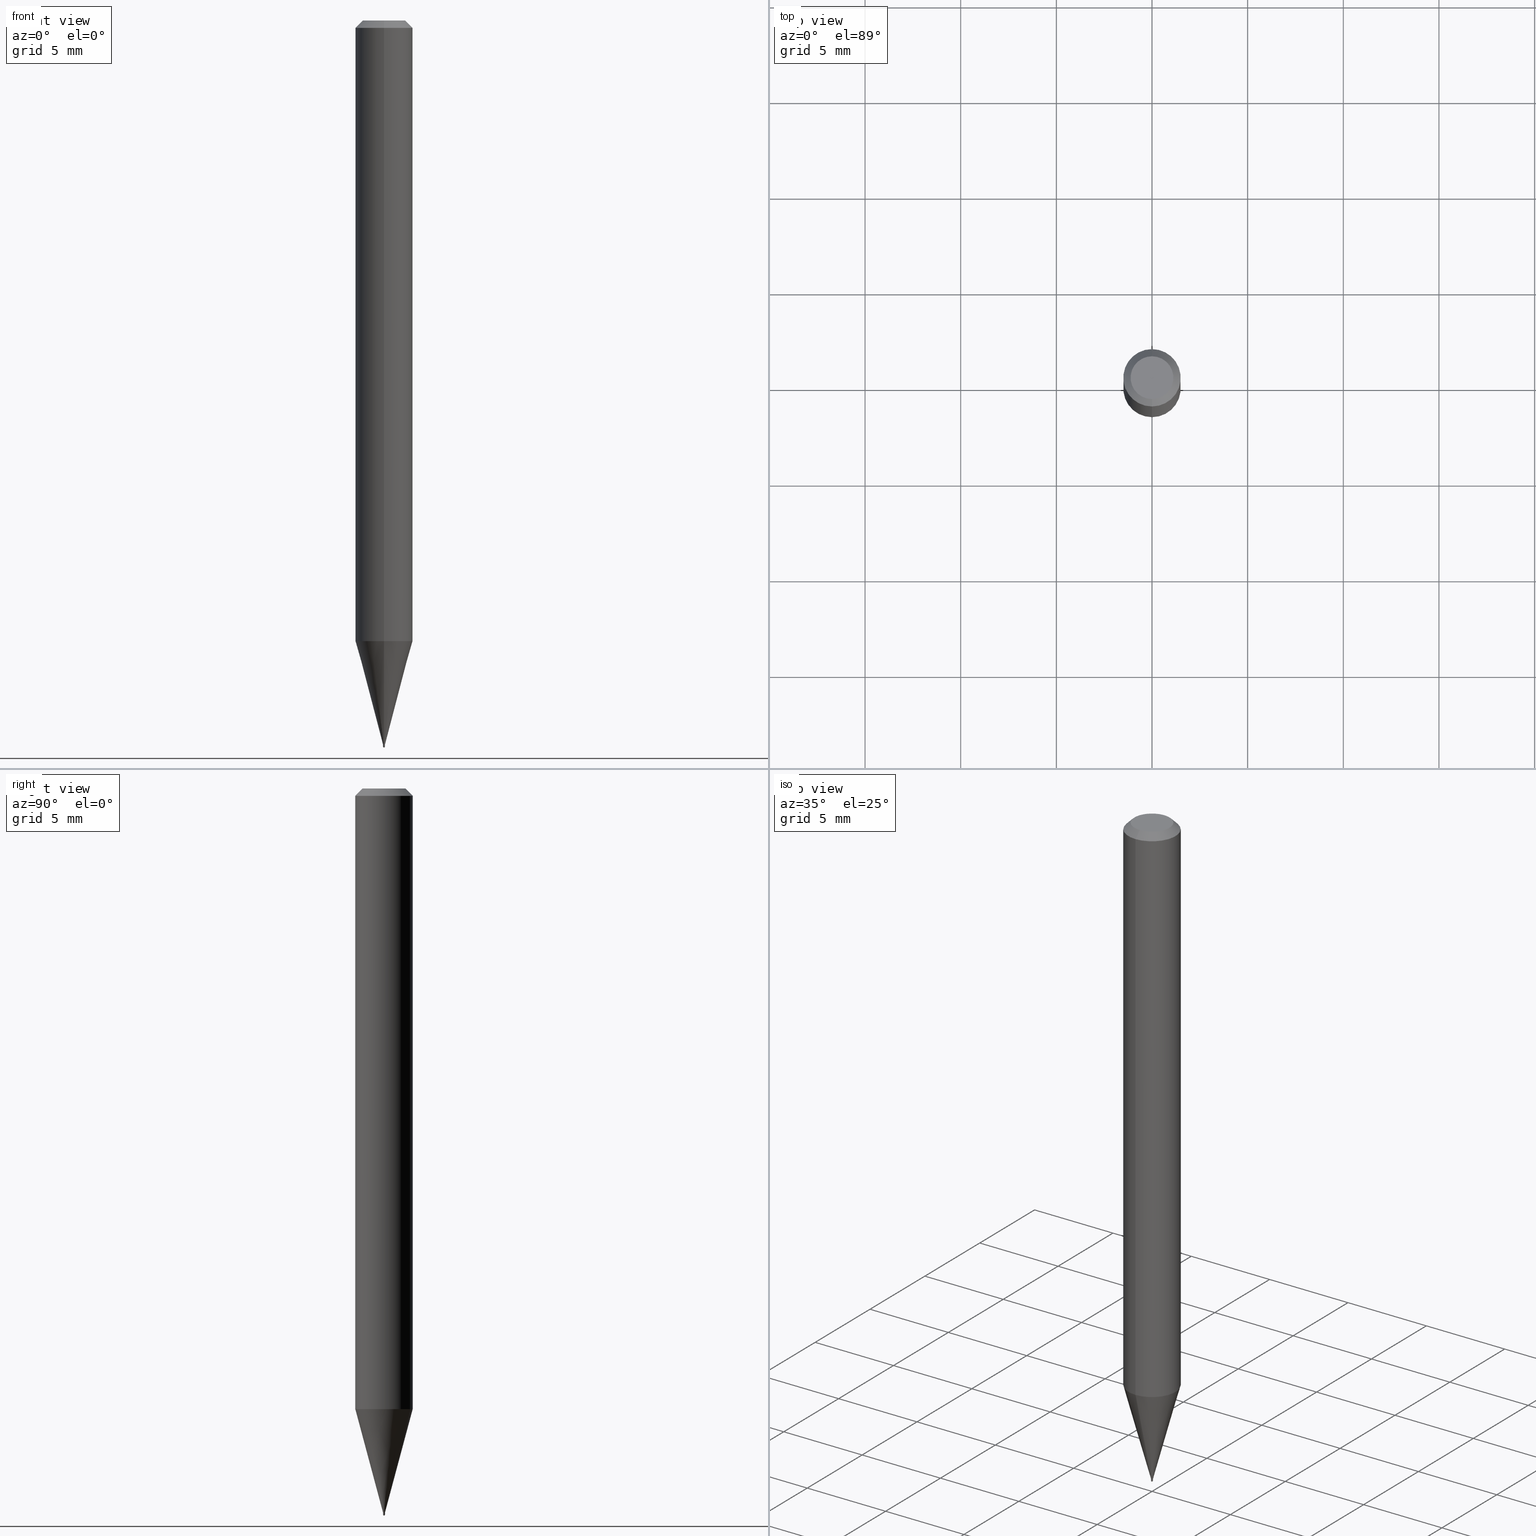
[diagram: canonical four-view strip — front | top / right | iso, engineering-drawing reading convention]
A machine part, canonical four-view strip (front | top / right | iso — engineering-drawing reading convention). The complete STEP part file that produces these views, byte-faithful:
ISO-10303-21;
HEADER;
FILE_DESCRIPTION (( 'STEP AP203' ),
    '1' );
FILE_NAME ('05004.STEP',
    '2024-03-08T20:38:46',
    ( '' ),
    ( '' ),
    'SwSTEP 2.0',
    'SolidWorks 2023',
    '' );
FILE_SCHEMA (( 'CONFIG_CONTROL_DESIGN' ));
ENDSEC;

DATA;
#1 = DIRECTION ( 'NONE',  ( -6.982962677686265922E-15, -1.000000000000000000, 3.490249775556892319E-15 ) ) ;
#2 = ORIENTED_EDGE ( 'NONE', *, *, #135, .F. ) ;
#3 = LENGTH_MEASURE_WITH_UNIT ( LENGTH_MEASURE( 0.02539999999999999897 ), #268 );
#4 = DIRECTION ( 'NONE',  ( 2.446328802231448422E-29, -3.490249775556891925E-15, -1.000000000000000000 ) ) ;
#5 = AXIS2_PLACEMENT_3D ( 'NONE', #329, #53, #482 ) ;
#6 = DIRECTION ( 'NONE',  ( -6.982962677686266711E-15, -1.000000000000000000, 0.000000000000000000 ) ) ;
#7 = CARTESIAN_POINT ( 'NONE',  ( 3.567880315564412653E-29, -5.339977940724723382E-15, -1.494149999999999867 ) ) ;
#8 = ORIENTED_EDGE ( 'NONE', *, *, #227, .F. ) ;
#9 = ADVANCED_FACE ( 'NONE', ( #278 ), #301, .T. ) ;
#10 = VERTEX_POINT ( 'NONE', #477 ) ;
#11 = VECTOR ( 'NONE', #54, 39.37007874015748143 ) ;
#12 = AXIS2_PLACEMENT_3D ( 'NONE', #337, #365, #447 ) ;
#13 = CARTESIAN_POINT ( 'NONE',  ( 0.000000000000000000, 0.000000000000000000, 0.000000000000000000 ) ) ;
#14 = ORIENTED_EDGE ( 'NONE', *, *, #20, .T. ) ;
#15 = EDGE_CURVE ( 'NONE', #10, #386, #92, .T. ) ;
#16 = DIRECTION ( 'NONE',  ( 5.024295867788193341E-15, 0.7071067811865684449, 0.7071067811865265895 ) ) ;
#17 = DIRECTION ( 'NONE',  ( -2.446328802231448422E-29, 3.490249775556891925E-15, 1.000000000000000000 ) ) ;
#18 = CYLINDRICAL_SURFACE ( 'NONE', #266, 0.001949999999999665326 ) ;
#19 = DIMENSIONAL_EXPONENTS ( 1.000000000000000000, 0.000000000000000000, 0.000000000000000000, 0.000000000000000000, 0.000000000000000000, 0.000000000000000000, 0.000000000000000000 ) ;
#20 = EDGE_CURVE ( 'NONE', #66, #426, #203, .T. ) ;
#21 = CARTESIAN_POINT ( 'NONE',  ( 3.669493203347191865E-31, -5.235374663335366212E-17, -0.01500000000000008098 ) ) ;
#22 = DIRECTION ( 'NONE',  ( -2.446328802231448422E-29, 3.490249775556891925E-15, 1.000000000000000000 ) ) ;
#23 = ORIENTED_EDGE ( 'NONE', *, *, #105, .T. ) ;
#24 = AXIS2_PLACEMENT_3D ( 'NONE', #79, #4, #213 ) ;
#25 = FACE_OUTER_BOUND ( 'NONE', #378, .T. ) ;
#26 = ORIENTED_EDGE ( 'NONE', *, *, #429, .T. ) ;
#27 = VERTEX_POINT ( 'NONE', #353 ) ;
#28 = FACE_OUTER_BOUND ( 'NONE', #183, .T. ) ;
#29 = EDGE_LOOP ( 'NONE', ( #343, #2, #190, #492 ) ) ;
#30 = DIRECTION ( 'NONE',  ( 6.982962677686265133E-15, 1.000000000000000000, 0.000000000000000000 ) ) ;
#31 = AXIS2_PLACEMENT_3D ( 'NONE', #401, #50, #6 ) ;
#32 = SECURITY_CLASSIFICATION ( '', '', #435 ) ;
#33 = ORIENTED_EDGE ( 'NONE', *, *, #100, .T. ) ;
#34 = ADVANCED_FACE ( 'NONE', ( #321 ), #39, .T. ) ;
#35 = ORIENTED_EDGE ( 'NONE', *, *, #347, .T. ) ;
#36 = CC_DESIGN_PERSON_AND_ORGANIZATION_ASSIGNMENT ( #395, #49, ( #75 ) ) ;
#37 = DIRECTION ( 'NONE',  ( -2.446328802231448422E-29, 3.490249775556891925E-15, 1.000000000000000000 ) ) ;
#38 = CARTESIAN_POINT ( 'NONE',  ( 0.000000000000000000, 0.000000000000000000, 0.000000000000000000 ) ) ;
#39 = CYLINDRICAL_SURFACE ( 'NONE', #350, 0.001949999999999876095 ) ;
#40 = DIRECTION ( 'NONE',  ( -6.982962677686266711E-15, -1.000000000000000000, 0.000000000000000000 ) ) ;
#41 = DIRECTION ( 'NONE',  ( 2.438088387897960049E-29, -3.491481338843145188E-15, -1.000000000000000000 ) ) ;
#42 = ADVANCED_FACE ( 'NONE', ( #239 ), #44, .F. ) ;
#43 = CIRCLE ( 'NONE', #402, 0.001449999999999872615 ) ;
#44 = PLANE ( 'NONE',  #58 ) ;
#45 = DIRECTION ( 'NONE',  ( -2.445468806185136597E-29, 3.491481338843145583E-15, 1.000000000000000000 ) ) ;
#46 = DIRECTION ( 'NONE',  ( -6.982962677686266711E-15, -1.000000000000000000, 0.000000000000000000 ) ) ;
#47 = COORDINATED_UNIVERSAL_TIME_OFFSET ( 5, 0, .BEHIND. ) ;
#48 = CARTESIAN_POINT ( 'NONE',  ( -4.051124067684085231E-16, -0.05905000000000005383, -0.01499999999999987454 ) ) ;
#49 = PERSON_AND_ORGANIZATION_ROLE ( 'design_owner' ) ;
#50 = DIRECTION ( 'NONE',  ( -2.446328802231448422E-29, 3.490249775556891925E-15, 1.000000000000000000 ) ) ;
#51 = CIRCLE ( 'NONE', #479, 0.001949999999999876095 ) ;
#52 = AXIS2_PLACEMENT_3D ( 'NONE', #7, #57, #218 ) ;
#53 = DIRECTION ( 'NONE',  ( -2.446328802231448422E-29, 3.490249775556891925E-15, 1.000000000000000000 ) ) ;
#54 = DIRECTION ( 'NONE',  ( -2.446328802231448422E-29, 3.490249775556892319E-15, 1.000000000000000000 ) ) ;
#55 = DATE_TIME_ROLE ( 'classification_date' ) ;
#56 = DIRECTION ( 'NONE',  ( -2.445468806185136877E-29, 3.491481338843145188E-15, 1.000000000000000000 ) ) ;
#57 = DIRECTION ( 'NONE',  ( -1.000000000000000000, 7.105427357601001070E-15, -4.926315508542082329E-29 ) ) ;
#58 = AXIS2_PLACEMENT_3D ( 'NONE', #316, #431, #128 ) ;
#59 = AXIS2_PLACEMENT_3D ( 'NONE', #138, #222, #373 ) ;
#60 = CC_DESIGN_DATE_AND_TIME_ASSIGNMENT ( #440, #242, ( #457 ) ) ;
#61 = DIRECTION ( 'NONE',  ( 1.000000000000000000, -6.982962677686104994E-15, 0.000000000000000000 ) ) ;
#62 = SHAPE_DEFINITION_REPRESENTATION ( #115, #118 ) ;
#63 = FACE_OUTER_BOUND ( 'NONE', #505, .T. ) ;
#64 = ORIENTED_EDGE ( 'NONE', *, *, #257, .T. ) ;
#65 = AXIS2_PLACEMENT_3D ( 'NONE', #220, #254, #223 ) ;
#66 = VERTEX_POINT ( 'NONE', #359 ) ;
#67 = ADVANCED_FACE ( 'NONE', ( #468 ), #406, .T. ) ;
#68 = ORIENTED_EDGE ( 'NONE', *, *, #100, .F. ) ;
#69 = DIRECTION ( 'NONE',  ( 1.000000000000000000, -6.982962677686104994E-15, 0.000000000000000000 ) ) ;
#70 = EDGE_CURVE ( 'NONE', #500, #426, #399, .T. ) ;
#71 = ORIENTED_EDGE ( 'NONE', *, *, #310, .F. ) ;
#72 = DIRECTION ( 'NONE',  ( -2.446328802231448422E-29, 3.490249775556891925E-15, 1.000000000000000000 ) ) ;
#73 = CIRCLE ( 'NONE', #422, 0.001949999999999532619 ) ;
#74 = ORIENTED_EDGE ( 'NONE', *, *, #361, .T. ) ;
#75 = PRODUCT ( '05004', '05004', '', ( #162 ) ) ;
#76 = DIRECTION ( 'NONE',  ( -2.446328802231448422E-29, 3.490249775556891925E-15, 1.000000000000000000 ) ) ;
#77 = DIRECTION ( 'NONE',  ( 1.000000000000000000, -6.982962677686104994E-15, 0.000000000000000000 ) ) ;
#78 = APPROVAL_ROLE ( '' ) ;
#79 = CARTESIAN_POINT ( 'NONE',  ( 3.669493203347191865E-31, -5.235374663335366212E-17, -0.01500000000000008098 ) ) ;
#80 = PERSON_AND_ORGANIZATION_ROLE ( 'creator' ) ;
#81 = DIRECTION ( 'NONE',  ( -1.807323732225385360E-15, -0.2588190451025260685, 0.9659258262890667579 ) ) ;
#82 = DIRECTION ( 'NONE',  ( 1.000000000000000000, -6.982962677686266711E-15, 4.876176775795935793E-29 ) ) ;
#83 = CARTESIAN_POINT ( 'NONE',  ( 3.572732358449668657E-29, -5.346666926272550502E-15, -1.496099999999999985 ) ) ;
#84 = EDGE_CURVE ( 'NONE', #177, #382, #428, .T. ) ;
#85 = PERSON_AND_ORGANIZATION_ROLE ( 'classification_officer' ) ;
#86 = VECTOR ( 'NONE', #282, 39.37007874015748143 ) ;
#87 = DIRECTION ( 'NONE',  ( -6.982962677686266711E-15, -1.000000000000000000, 0.000000000000000000 ) ) ;
#88 = CARTESIAN_POINT ( 'NONE',  ( -0.001949999999999876095, 1.385558334732107322E-17, -9.591923425996456922E-32 ) ) ;
#89 = FACE_OUTER_BOUND ( 'NONE', #311, .T. ) ;
#90 = VERTEX_POINT ( 'NONE', #83 ) ;
#91 = CARTESIAN_POINT ( 'NONE',  ( -0.001949999999999876095, -5.196045583440950232E-15, -1.494149999999999645 ) ) ;
#92 = CIRCLE ( 'NONE', #283, 0.001949999999999797815 ) ;
#93 = ORGANIZATION ( 'UNSPECIFIED', 'UNSPECIFIED', '' ) ;
#94 = DIRECTION ( 'NONE',  ( -6.982962677686266711E-15, -1.000000000000000000, 0.000000000000000000 ) ) ;
#95 = CARTESIAN_POINT ( 'NONE',  ( 1.385558334731957408E-17, 0.001949999999999665326, -6.805987062334771091E-18 ) ) ;
#96 = DIRECTION ( 'NONE',  ( -2.446328802231448422E-29, 3.490249775556891925E-15, 1.000000000000000000 ) ) ;
#97 = ORIENTED_EDGE ( 'NONE', *, *, #198, .T. ) ;
#98 = ORIENTED_EDGE ( 'NONE', *, *, #354, .F. ) ;
#99 = CIRCLE ( 'NONE', #31, 0.001949999999999797815 ) ;
#100 = EDGE_CURVE ( 'NONE', #386, #10, #99, .T. ) ;
#101 = CIRCLE ( 'NONE', #490, 0.001949999999999876095 ) ;
#102 = ORIENTED_EDGE ( 'NONE', *, *, #227, .T. ) ;
#103 = CARTESIAN_POINT ( 'NONE',  ( 3.653897216761521136E-29, -5.216796842432485402E-15, -1.494149999999999645 ) ) ;
#104 = DATE_AND_TIME ( #142, #284 ) ;
#105 = EDGE_CURVE ( 'NONE', #376, #139, #335, .T. ) ;
#106 = ORIENTED_EDGE ( 'NONE', *, *, #181, .T. ) ;
#107 = DIRECTION ( 'NONE',  ( -2.446328802231448422E-29, 3.490249775556892319E-15, 1.000000000000000000 ) ) ;
#108 = ORIENTED_EDGE ( 'NONE', *, *, #410, .F. ) ;
#109 = CARTESIAN_POINT ( 'NONE',  ( -1.012529588260774284E-17, -0.001450000000005073966, -1.490199999999999747 ) ) ;
#110 = AXIS2_PLACEMENT_3D ( 'NONE', #120, #41, #164 ) ;
#111 = APPROVAL_PERSON_ORGANIZATION ( #288, #369, #314 ) ;
#112 = ORIENTED_EDGE ( 'NONE', *, *, #135, .T. ) ;
#113 = CARTESIAN_POINT ( 'NONE',  ( 3.645519181085303666E-29, -5.201170215534880064E-15, -1.490199999999999747 ) ) ;
#114 = EDGE_CURVE ( 'NONE', #318, #66, #315, .T. ) ;
#115 = PRODUCT_DEFINITION_SHAPE ( 'NONE', 'NONE',  #457 ) ;
#116 = DIRECTION ( 'NONE',  ( 6.982962677686265922E-15, 1.000000000000000000, 0.000000000000000000 ) ) ;
#117 = DATE_AND_TIME ( #168, #375 ) ;
#118 = ADVANCED_BREP_SHAPE_REPRESENTATION ( '05004', ( #409, #417, #161 ), #172 ) ;
#119 = DIRECTION ( 'NONE',  ( -6.982962677686266711E-15, -1.000000000000000000, 0.000000000000000000 ) ) ;
#120 = CARTESIAN_POINT ( 'NONE',  ( 1.361677722152379665E-17, 0.001949999999994673008, -1.490199999999999747 ) ) ;
#121 = DIRECTION ( 'NONE',  ( -2.446328802231448422E-29, 3.490249775556891925E-15, 1.000000000000000000 ) ) ;
#122 = PERSON_AND_ORGANIZATION ( #416, #93 ) ;
#123 = PRODUCT_DEFINITION_FORMATION_WITH_SPECIFIED_SOURCE ( 'ANY', '', #75, .NOT_KNOWN. ) ;
#124 = CARTESIAN_POINT ( 'NONE',  ( 0.000000000000000000, 0.000000000000000000, 0.000000000000000000 ) ) ;
#125 = FACE_OUTER_BOUND ( 'NONE', #436, .T. ) ;
#126 = EDGE_LOOP ( 'NONE', ( #366, #146, #379, #259 ) ) ;
#127 = EDGE_CURVE ( 'NONE', #318, #27, #73, .T. ) ;
#128 = DIRECTION ( 'NONE',  ( 6.982962677686265922E-15, 1.000000000000000000, -3.490249775556892319E-15 ) ) ;
#129 = CARTESIAN_POINT ( 'NONE',  ( 3.645519181085303666E-29, -5.201170215534880064E-15, -1.490199999999999747 ) ) ;
#130 = AXIS2_PLACEMENT_3D ( 'NONE', #159, #463, #119 ) ;
#131 = CIRCLE ( 'NONE', #509, 0.001949999999999980395 ) ;
#132 = EDGE_CURVE ( 'NONE', #382, #426, #194, .T. ) ;
#133 = FACE_OUTER_BOUND ( 'NONE', #362, .T. ) ;
#134 = ORIENTED_EDGE ( 'NONE', *, *, #361, .F. ) ;
#135 = EDGE_CURVE ( 'NONE', #177, #500, #472, .T. ) ;
#136 = DIRECTION ( 'NONE',  ( -6.982962677686265922E-15, -1.000000000000000000, 3.505890868245046092E-15 ) ) ;
#137 = EDGE_CURVE ( 'NONE', #494, #287, #449, .T. ) ;
#138 = CARTESIAN_POINT ( 'NONE',  ( 0.000000000000000000, 0.000000000000000000, 0.000000000000000000 ) ) ;
#139 = VERTEX_POINT ( 'NONE', #332 ) ;
#140 = AXIS2_PLACEMENT_3D ( 'NONE', #503, #171, #313 ) ;
#141 = CONICAL_SURFACE ( 'NONE', #275, 0.001949999999999532619, 0.2617993877991584561 ) ;
#142 = CALENDAR_DATE ( 2024, 8, 3 ) ;
#143 = DIRECTION ( 'NONE',  ( 1.000000000000000000, -6.982962677686266711E-15, 4.876176775795935793E-29 ) ) ;
#144 = APPROVAL ( #326, 'UNSPECIFIED' ) ;
#145 = EDGE_LOOP ( 'NONE', ( #230, #333 ) ) ;
#146 = ORIENTED_EDGE ( 'NONE', *, *, #152, .T. ) ;
#147 = DIRECTION ( 'NONE',  ( -2.446328802231448422E-29, 3.490249775556891925E-15, 1.000000000000000000 ) ) ;
#148 = VECTOR ( 'NONE', #16, 39.37007874015748143 ) ;
#149 = VECTOR ( 'NONE', #487, 39.37007874015748143 ) ;
#150 = ORIENTED_EDGE ( 'NONE', *, *, #451, .T. ) ;
#151 = CARTESIAN_POINT ( 'NONE',  ( 3.645519181085303666E-29, -5.201170215534880064E-15, -1.490199999999999747 ) ) ;
#152 = EDGE_CURVE ( 'NONE', #27, #10, #488, .T. ) ;
#153 = VERTEX_POINT ( 'NONE', #408 ) ;
#154 = PRODUCT_RELATED_PRODUCT_CATEGORY ( 'detail', '', ( #75 ) ) ;
#155 = FACE_OUTER_BOUND ( 'NONE', #192, .T. ) ;
#156 = CARTESIAN_POINT ( 'NONE',  ( -3.536586717851222218E-16, -0.04404999999999999888, 7.318909490857033312E-17 ) ) ;
#157 = EDGE_LOOP ( 'NONE', ( #341, #304, #269, #339 ) ) ;
#158 = CARTESIAN_POINT ( 'NONE',  ( -1.361677722144850050E-17, -0.001950000000004733971, -1.490199999999999747 ) ) ;
#159 = CARTESIAN_POINT ( 'NONE',  ( 3.645519181085303666E-29, -5.201170215534880064E-15, -1.490199999999999747 ) ) ;
#160 = VECTOR ( 'NONE', #107, 39.37007874015748143 ) ;
#161 = AXIS2_PLACEMENT_3D ( 'NONE', #38, #398, #214 ) ;
#162 = MECHANICAL_CONTEXT ( 'NONE', #377, 'mechanical' ) ;
#163 = DIRECTION ( 'NONE',  ( -2.445468806185136597E-29, 3.491481338843145583E-15, 1.000000000000000000 ) ) ;
#164 = DIRECTION ( 'NONE',  ( -1.000000000000000000, 6.982962677686265922E-15, -4.876176775795935793E-29 ) ) ;
#165 = DIRECTION ( 'NONE',  ( -2.445468806185136597E-29, 3.491481338843145583E-15, 1.000000000000000000 ) ) ;
#166 = ADVANCED_FACE ( 'NONE', ( #336 ), #403, .T. ) ;
#167 = DIRECTION ( 'NONE',  ( 1.000000000000000000, -6.982962677686104994E-15, 0.000000000000000000 ) ) ;
#168 = CALENDAR_DATE ( 2024, 8, 3 ) ;
#169 = ADVANCED_FACE ( 'NONE', ( #133 ), #381, .T. ) ;
#170 = CIRCLE ( 'NONE', #290, 0.05904999999999999832 ) ;
#171 = DIRECTION ( 'NONE',  ( 2.446328802231448422E-29, -3.490249775556891925E-15, -1.000000000000000000 ) ) ;
#172 =( GEOMETRIC_REPRESENTATION_CONTEXT ( 3 ) GLOBAL_UNCERTAINTY_ASSIGNED_CONTEXT ( ( #493 ) ) GLOBAL_UNIT_ASSIGNED_CONTEXT ( ( #251, #467, #202 ) ) REPRESENTATION_CONTEXT ( 'NONE', 'WORKASPACE' ) );
#173 = CARTESIAN_POINT ( 'NONE',  ( -4.123439461173739834E-16, -0.05904999999999999832, 2.060992492466344811E-16 ) ) ;
#174 = ADVANCED_FACE ( 'NONE', ( #125 ), #201, .T. ) ;
#175 = ORIENTED_EDGE ( 'NONE', *, *, #132, .F. ) ;
#176 = CC_DESIGN_DATE_AND_TIME_ASSIGNMENT ( #308, #55, ( #32 ) ) ;
#177 = VERTEX_POINT ( 'NONE', #351 ) ;
#178 = PERSON_AND_ORGANIZATION ( #416, #93 ) ;
#179 = DIRECTION ( 'NONE',  ( -2.446328802231448422E-29, 3.490249775556892319E-15, 1.000000000000000000 ) ) ;
#180 = VECTOR ( 'NONE', #81, 39.37007874015748854 ) ;
#181 = EDGE_CURVE ( 'NONE', #426, #382, #170, .T. ) ;
#182 = CIRCLE ( 'NONE', #319, 0.001449999999999872615 ) ;
#183 = EDGE_LOOP ( 'NONE', ( #423, #102, #197, #298 ) ) ;
#184 = ADVANCED_FACE ( 'NONE', ( #464 ), #469, .T. ) ;
#185 = ORIENTED_EDGE ( 'NONE', *, *, #261, .T. ) ;
#186 = ADVANCED_FACE ( 'NONE', ( #155 ), #388, .F. ) ;
#187 = DIRECTION ( 'NONE',  ( -2.446328802231448422E-29, 3.490249775556891925E-15, 1.000000000000000000 ) ) ;
#188 = CARTESIAN_POINT ( 'NONE',  ( -4.123439461173736383E-16, -0.05905000000000005383, -0.01499999999999987454 ) ) ;
#189 = CIRCLE ( 'NONE', #274, 0.05904999999999999832 ) ;
#190 = ORIENTED_EDGE ( 'NONE', *, *, #84, .T. ) ;
#191 = ORIENTED_EDGE ( 'NONE', *, *, #296, .F. ) ;
#192 = EDGE_LOOP ( 'NONE', ( #26, #330 ) ) ;
#193 = CARTESIAN_POINT ( 'NONE',  ( -1.012529588260774284E-17, -0.001450000000005073966, -1.490199999999999747 ) ) ;
#194 = CIRCLE ( 'NONE', #453, 0.05904999999999999832 ) ;
#195 = COORDINATED_UNIVERSAL_TIME_OFFSET ( 5, 0, .BEHIND. ) ;
#196 = AXIS2_PLACEMENT_3D ( 'NONE', #297, #22, #411 ) ;
#197 = ORIENTED_EDGE ( 'NONE', *, *, #306, .F. ) ;
#198 = EDGE_CURVE ( 'NONE', #452, #494, #448, .T. ) ;
#199 = ORIENTED_EDGE ( 'NONE', *, *, #310, .T. ) ;
#200 = DIRECTION ( 'NONE',  ( -2.446328802231447861E-29, 3.490249775556892319E-15, 1.000000000000000000 ) ) ;
#201 = SPHERICAL_SURFACE ( 'NONE', #244, 0.001949999999999980395 ) ;
#202 =( NAMED_UNIT ( * ) SI_UNIT ( $, .STERADIAN. ) SOLID_ANGLE_UNIT ( ) );
#203 = LINE ( 'NONE', #173, #253 ) ;
#204 = PLANE ( 'NONE',  #498 ) ;
#205 = LINE ( 'NONE', #280, #11 ) ;
#206 = VECTOR ( 'NONE', #179, 39.37007874015748143 ) ;
#207 = AXIS2_PLACEMENT_3D ( 'NONE', #272, #72, #94 ) ;
#208 = CARTESIAN_POINT ( 'NONE',  ( 0.000000000000000000, 0.000000000000000000, 0.000000000000000000 ) ) ;
#209 = COORDINATED_UNIVERSAL_TIME_OFFSET ( 5, 0, .BEHIND. ) ;
#210 = CARTESIAN_POINT ( 'NONE',  ( -1.361677722144850050E-17, -0.001950000000004733971, -1.490199999999999747 ) ) ;
#211 = COORDINATED_UNIVERSAL_TIME_OFFSET ( 5, 0, .BEHIND. ) ;
#212 = DATE_AND_TIME ( #352, #443 ) ;
#213 = DIRECTION ( 'NONE',  ( 6.982962677686265922E-15, 1.000000000000000000, -3.505890868245046092E-15 ) ) ;
#214 = DIRECTION ( 'NONE',  ( 1.000000000000000000, 0.000000000000000000, 0.000000000000000000 ) ) ;
#215 = DIRECTION ( 'NONE',  ( -6.982962677686266711E-15, -1.000000000000000000, 0.000000000000000000 ) ) ;
#216 = CC_DESIGN_PERSON_AND_ORGANIZATION_ASSIGNMENT ( #430, #80, ( #123 ) ) ;
#217 = VECTOR ( 'NONE', #459, 39.37007874015748143 ) ;
#218 = DIRECTION ( 'NONE',  ( -7.105427357601001070E-15, -1.000000000000000000, 0.000000000000000000 ) ) ;
#219 = VERTEX_POINT ( 'NONE', #320 ) ;
#220 = CARTESIAN_POINT ( 'NONE',  ( 3.124206265976151613E-29, -4.457397635456953837E-15, -1.277099898887823048 ) ) ;
#221 = DIRECTION ( 'NONE',  ( -1.000000000000000000, 6.982962677686265922E-15, -4.883557194083112901E-29 ) ) ;
#222 = DIRECTION ( 'NONE',  ( -2.446328802231448422E-29, 3.490249775556891925E-15, 1.000000000000000000 ) ) ;
#223 = DIRECTION ( 'NONE',  ( -6.982962677686265922E-15, -1.000000000000000000, 4.626330217890369336E-15 ) ) ;
#224 = ORIENTED_EDGE ( 'NONE', *, *, #485, .T. ) ;
#225 = CLOSED_SHELL ( 'NONE', ( #496, #67, #169, #166, #358, #322, #184, #9, #42, #303, #234, #400 ) ) ;
#226 = LOCAL_TIME ( 15, 38, 46.00000000000000000, #478 ) ;
#227 = EDGE_CURVE ( 'NONE', #27, #153, #474, .T. ) ;
#228 = ORIENTED_EDGE ( 'NONE', *, *, #385, .T. ) ;
#229 = DESIGN_CONTEXT ( 'detailed design', #245, 'design' ) ;
#230 = ORIENTED_EDGE ( 'NONE', *, *, #385, .F. ) ;
#231 = CARTESIAN_POINT ( 'NONE',  ( 3.644237614977089798E-29, -5.203005491144055129E-15, -1.490199999999999747 ) ) ;
#232 = ORIENTED_EDGE ( 'NONE', *, *, #105, .F. ) ;
#233 = DIRECTION ( 'NONE',  ( 1.000000000000000000, -6.982962677686265922E-15, 4.883557194083112340E-29 ) ) ;
#234 = ADVANCED_FACE ( 'NONE', ( #25 ), #489, .T. ) ;
#235 = AXIS2_PLACEMENT_3D ( 'NONE', #324, #163, #77 ) ;
#236 = ORIENTED_EDGE ( 'NONE', *, *, #15, .F. ) ;
#237 = CARTESIAN_POINT ( 'NONE',  ( 3.645519181085303666E-29, -5.201170215534880064E-15, -1.490199999999999747 ) ) ;
#238 = EDGE_CURVE ( 'NONE', #318, #386, #205, .T. ) ;
#239 = FACE_OUTER_BOUND ( 'NONE', #460, .T. ) ;
#240 = CARTESIAN_POINT ( 'NONE',  ( 3.567880315564412653E-29, -5.339977940724723382E-15, -1.494149999999999867 ) ) ;
#241 = CC_DESIGN_PERSON_AND_ORGANIZATION_ASSIGNMENT ( #481, #85, ( #32 ) ) ;
#242 = DATE_TIME_ROLE ( 'creation_date' ) ;
#243 = DIRECTION ( 'NONE',  ( 4.937700262164548042E-15, 0.7071067811865451302, -0.7071067811865499042 ) ) ;
#244 = AXIS2_PLACEMENT_3D ( 'NONE', #309, #466, #116 ) ;
#245 = APPLICATION_CONTEXT ( 'configuration controlled 3d designs of mechanical parts and assemblies' ) ;
#246 = CIRCLE ( 'NONE', #480, 0.001949999999999876095 ) ;
#247 = CARTESIAN_POINT ( 'NONE',  ( 3.669493203347191865E-31, -5.235374663335366212E-17, -0.01500000000000008098 ) ) ;
#248 = CARTESIAN_POINT ( 'NONE',  ( 3.645519181085303666E-29, -5.201170215534880064E-15, -1.490199999999999747 ) ) ;
#249 = CARTESIAN_POINT ( 'NONE',  ( 3.645519181085303666E-29, -5.201170215534880064E-15, -1.490199999999999747 ) ) ;
#250 = DIRECTION ( 'NONE',  ( -6.982962677686265922E-15, -1.000000000000000000, 3.505890868245046092E-15 ) ) ;
#251 =( CONVERSION_BASED_UNIT ( 'INCH', #3 ) LENGTH_UNIT ( ) NAMED_UNIT ( #19 ) );
#252 = DIRECTION ( 'NONE',  ( -6.982962677686266711E-15, -1.000000000000000000, 0.000000000000000000 ) ) ;
#253 = VECTOR ( 'NONE', #471, 39.37007874015748143 ) ;
#254 = DIRECTION ( 'NONE',  ( -2.446328802231448422E-29, 3.490249775556891925E-15, 1.000000000000000000 ) ) ;
#255 = ORIENTED_EDGE ( 'NONE', *, *, #396, .T. ) ;
#256 = APPROVAL_ROLE ( '' ) ;
#257 = EDGE_CURVE ( 'NONE', #219, #370, #43, .T. ) ;
#258 = AXIS2_PLACEMENT_3D ( 'NONE', #249, #121, #252 ) ;
#259 = ORIENTED_EDGE ( 'NONE', *, *, #238, .F. ) ;
#260 = DIRECTION ( 'NONE',  ( -2.445468806185136597E-29, 3.491481338843145583E-15, 1.000000000000000000 ) ) ;
#261 = EDGE_CURVE ( 'NONE', #219, #10, #363, .T. ) ;
#262 = ORIENTED_EDGE ( 'NONE', *, *, #451, .F. ) ;
#263 = DIRECTION ( 'NONE',  ( 1.839019923739656324E-15, 0.2588190451025328409, 0.9659258262890649815 ) ) ;
#264 = ORIENTED_EDGE ( 'NONE', *, *, #364, .T. ) ;
#265 = AXIS2_PLACEMENT_3D ( 'NONE', #113, #421, #40 ) ;
#266 = AXIS2_PLACEMENT_3D ( 'NONE', #450, #96, #504 ) ;
#267 = ADVANCED_FACE ( 'NONE', ( #486 ), #302, .T. ) ;
#268 =( LENGTH_UNIT ( ) NAMED_UNIT ( * ) SI_UNIT ( $, .METRE. ) );
#269 = ORIENTED_EDGE ( 'NONE', *, *, #181, .F. ) ;
#270 = CARTESIAN_POINT ( 'NONE',  ( 3.653897216761521136E-29, -5.216796842432485402E-15, -1.494149999999999645 ) ) ;
#271 = EDGE_LOOP ( 'NONE', ( #307, #224, #134, #420 ) ) ;
#272 = CARTESIAN_POINT ( 'NONE',  ( 3.645519181085303666E-29, -5.201170215534880064E-15, -1.490199999999999747 ) ) ;
#273 = ORIENTED_EDGE ( 'NONE', *, *, #84, .F. ) ;
#274 = AXIS2_PLACEMENT_3D ( 'NONE', #346, #340, #349 ) ;
#275 = AXIS2_PLACEMENT_3D ( 'NONE', #495, #147, #456 ) ;
#276 = ORIENTED_EDGE ( 'NONE', *, *, #396, .F. ) ;
#277 = CALENDAR_DATE ( 2024, 8, 3 ) ;
#278 = FACE_OUTER_BOUND ( 'NONE', #29, .T. ) ;
#279 = APPROVAL ( #389, 'UNSPECIFIED' ) ;
#280 = CARTESIAN_POINT ( 'NONE',  ( -1.361677722148588048E-17, -0.001949999999999665326, 6.805987062334771091E-18 ) ) ;
#281 = APPROVAL_STATUS ( 'not_yet_approved' ) ;
#282 = DIRECTION ( 'NONE',  ( -4.851104656540964275E-15, -0.7071067811865500152, -0.7071067811865450192 ) ) ;
#283 = AXIS2_PLACEMENT_3D ( 'NONE', #508, #356, #215 ) ;
#284 = LOCAL_TIME ( 15, 38, 46.00000000000000000, #195 ) ;
#285 = CC_DESIGN_PERSON_AND_ORGANIZATION_ASSIGNMENT ( #511, #470, ( #457 ) ) ;
#286 = PERSON_AND_ORGANIZATION_ROLE ( 'design_supplier' ) ;
#287 = VERTEX_POINT ( 'NONE', #334 ) ;
#288 = PERSON_AND_ORGANIZATION ( #416, #93 ) ;
#289 = CARTESIAN_POINT ( 'NONE',  ( 1.970674603723332125E-45, -2.811619839110361524E-31, -8.055640770471075086E-17 ) ) ;
#290 = AXIS2_PLACEMENT_3D ( 'NONE', #247, #37, #250 ) ;
#291 = DIRECTION ( 'NONE',  ( -2.446328802231448422E-29, 3.490249775556891925E-15, 1.000000000000000000 ) ) ;
#292 = CALENDAR_DATE ( 2024, 8, 3 ) ;
#293 = LINE ( 'NONE', #445, #149 ) ;
#294 = CARTESIAN_POINT ( 'NONE',  ( 4.195754854663390985E-16, 0.05904999999999999832, -2.060992492466344811E-16 ) ) ;
#295 = AXIS2_PLACEMENT_3D ( 'NONE', #208, #76, #1 ) ;
#296 = EDGE_CURVE ( 'NONE', #370, #386, #305, .T. ) ;
#297 = CARTESIAN_POINT ( 'NONE',  ( 1.970674603723332125E-45, -2.811619839110361524E-31, -8.055640770471075086E-17 ) ) ;
#298 = ORIENTED_EDGE ( 'NONE', *, *, #114, .F. ) ;
#299 = ORIENTED_EDGE ( 'NONE', *, *, #114, .T. ) ;
#300 = ORIENTED_EDGE ( 'NONE', *, *, #238, .T. ) ;
#301 = CONICAL_SURFACE ( 'NONE', #24, 0.05904999999999999832, 0.7853981633974483900 ) ;
#302 = SPHERICAL_SURFACE ( 'NONE', #374, 0.001949999999999980395 ) ;
#303 = ADVANCED_FACE ( 'NONE', ( #425 ), #204, .F. ) ;
#304 = ORIENTED_EDGE ( 'NONE', *, *, #344, .T. ) ;
#305 = LINE ( 'NONE', #109, #217 ) ;
#306 = EDGE_CURVE ( 'NONE', #66, #153, #189, .T. ) ;
#307 = ORIENTED_EDGE ( 'NONE', *, *, #364, .F. ) ;
#308 = DATE_AND_TIME ( #292, #226 ) ;
#309 = CARTESIAN_POINT ( 'NONE',  ( 3.567880315564412653E-29, -5.339977940724723382E-15, -1.494149999999999867 ) ) ;
#310 = EDGE_CURVE ( 'NONE', #139, #452, #51, .T. ) ;
#311 = EDGE_LOOP ( 'NONE', ( #325, #455, #300, #33 ) ) ;
#312 = AXIS2_PLACEMENT_3D ( 'NONE', #13, #405, #143 ) ;
#313 = DIRECTION ( 'NONE',  ( 6.982962677686265922E-15, 1.000000000000000000, -3.505890868245046092E-15 ) ) ;
#314 = APPROVAL_ROLE ( '' ) ;
#315 = LINE ( 'NONE', #210, #180 ) ;
#316 = CARTESIAN_POINT ( 'NONE',  ( 3.075995059520799729E-16, 0.04404999999999999888, -1.940237064656364779E-16 ) ) ;
#317 = APPROVAL_DATE_TIME ( #117, #369 ) ;
#318 = VERTEX_POINT ( 'NONE', #158 ) ;
#319 = AXIS2_PLACEMENT_3D ( 'NONE', #151, #384, #360 ) ;
#320 = CARTESIAN_POINT ( 'NONE',  ( 1.207922650795697936E-17, 0.001449999999994671480, -1.490199999999999747 ) ) ;
#321 = FACE_OUTER_BOUND ( 'NONE', #418, .T. ) ;
#322 = ADVANCED_FACE ( 'NONE', ( #407 ), #413, .T. ) ;
#323 = APPLICATION_PROTOCOL_DEFINITION ( 'international standard', 'config_control_design', 1994, #377 ) ;
#324 = CARTESIAN_POINT ( 'NONE',  ( 3.653897216761521136E-29, -5.216796842432485402E-15, -1.494149999999999645 ) ) ;
#325 = ORIENTED_EDGE ( 'NONE', *, *, #152, .F. ) ;
#326 = APPROVAL_STATUS ( 'not_yet_approved' ) ;
#327 = VECTOR ( 'NONE', #263, 39.37007874015748854 ) ;
#328 = APPROVAL_PERSON_ORGANIZATION ( #178, #144, #256 ) ;
#329 = CARTESIAN_POINT ( 'NONE',  ( 0.000000000000000000, 0.000000000000000000, 0.000000000000000000 ) ) ;
#330 = ORIENTED_EDGE ( 'NONE', *, *, #354, .T. ) ;
#331 = CARTESIAN_POINT ( 'NONE',  ( 1.030286966855700003E-17, 0.001449999999994671480, -1.490199999999999747 ) ) ;
#332 = CARTESIAN_POINT ( 'NONE',  ( 0.001949999999999876095, -5.223517944009756810E-15, -1.494149999999999645 ) ) ;
#333 = ORIENTED_EDGE ( 'NONE', *, *, #257, .F. ) ;
#334 = CARTESIAN_POINT ( 'NONE',  ( -0.001949999999999876095, -5.196045583440950232E-15, -1.490199999999999747 ) ) ;
#335 = CIRCLE ( 'NONE', #235, 0.001949999999999876095 ) ;
#336 = FACE_OUTER_BOUND ( 'NONE', #157, .T. ) ;
#337 = CARTESIAN_POINT ( 'NONE',  ( 3.644237614977089798E-29, -5.203005491144055129E-15, -1.490199999999999747 ) ) ;
#338 = VERTEX_POINT ( 'NONE', #372 ) ;
#339 = ORIENTED_EDGE ( 'NONE', *, *, #20, .F. ) ;
#340 = DIRECTION ( 'NONE',  ( -2.446328802231448422E-29, 3.490249775556891925E-15, 1.000000000000000000 ) ) ;
#341 = ORIENTED_EDGE ( 'NONE', *, *, #306, .T. ) ;
#342 = CARTESIAN_POINT ( 'NONE',  ( -1.385558334728532642E-17, -0.001950000000005206683, -1.494149999999999645 ) ) ;
#343 = ORIENTED_EDGE ( 'NONE', *, *, #70, .F. ) ;
#344 = EDGE_CURVE ( 'NONE', #153, #382, #510, .T. ) ;
#345 = ORIENTED_EDGE ( 'NONE', *, *, #137, .T. ) ;
#346 = CARTESIAN_POINT ( 'NONE',  ( 3.124206265976151613E-29, -4.457397635456953837E-15, -1.277099898887823048 ) ) ;
#347 = EDGE_CURVE ( 'NONE', #27, #318, #392, .T. ) ;
#348 = ORIENTED_EDGE ( 'NONE', *, *, #410, .T. ) ;
#349 = DIRECTION ( 'NONE',  ( -6.982962677686265922E-15, -1.000000000000000000, 4.626330217890369336E-15 ) ) ;
#350 = AXIS2_PLACEMENT_3D ( 'NONE', #124, #165, #82 ) ;
#351 = CARTESIAN_POINT ( 'NONE',  ( 3.599717260347271507E-16, 0.04404999999999999888, -2.343019103179918348E-16 ) ) ;
#352 = CALENDAR_DATE ( 2024, 8, 3 ) ;
#353 = CARTESIAN_POINT ( 'NONE',  ( 2.167155344068628460E-16, 0.001949999999994331485, -1.490199999999999747 ) ) ;
#354 = EDGE_CURVE ( 'NONE', #287, #338, #101, .T. ) ;
#355 = APPROVAL_DATE_TIME ( #212, #279 ) ;
#356 = DIRECTION ( 'NONE',  ( -2.446328802231448422E-29, 3.490249775556891925E-15, 1.000000000000000000 ) ) ;
#357 = AXIS2_PLACEMENT_3D ( 'NONE', #289, #17, #444 ) ;
#358 = ADVANCED_FACE ( 'NONE', ( #28 ), #141, .T. ) ;
#359 = CARTESIAN_POINT ( 'NONE',  ( -4.123439461173428234E-16, -0.05905000000000444615, -1.277099898887822604 ) ) ;
#360 = DIRECTION ( 'NONE',  ( -6.982962677686266711E-15, -1.000000000000000000, 0.000000000000000000 ) ) ;
#361 = EDGE_CURVE ( 'NONE', #494, #376, #246, .T. ) ;
#362 = EDGE_LOOP ( 'NONE', ( #108, #502, #106, #273 ) ) ;
#363 = LINE ( 'NONE', #331, #148 ) ;
#364 = EDGE_CURVE ( 'NONE', #90, #452, #131, .T. ) ;
#365 = DIRECTION ( 'NONE',  ( -2.445468806185136597E-29, 3.491481338843145583E-15, 1.000000000000000000 ) ) ;
#366 = ORIENTED_EDGE ( 'NONE', *, *, #347, .F. ) ;
#367 = AXIS2_PLACEMENT_3D ( 'NONE', #394, #45, #167 ) ;
#368 = APPROVAL_PERSON_ORGANIZATION ( #427, #279, #78 ) ;
#369 = APPROVAL ( #281, 'UNSPECIFIED' ) ;
#370 = VERTEX_POINT ( 'NONE', #193 ) ;
#371 = FACE_OUTER_BOUND ( 'NONE', #126, .T. ) ;
#372 = CARTESIAN_POINT ( 'NONE',  ( 0.001949999999999876095, -5.216622268365542068E-15, -1.490199999999999747 ) ) ;
#373 = DIRECTION ( 'NONE',  ( -6.982962677686265133E-15, -1.000000000000000000, 3.490249775556891925E-15 ) ) ;
#374 = AXIS2_PLACEMENT_3D ( 'NONE', #240, #221, #387 ) ;
#375 = LOCAL_TIME ( 15, 38, 46.00000000000000000, #211 ) ;
#376 = VERTEX_POINT ( 'NONE', #342 ) ;
#377 = APPLICATION_CONTEXT ( 'configuration controlled 3d designs of mechanical parts and assemblies' ) ;
#378 = EDGE_LOOP ( 'NONE', ( #415, #64, #465, #236 ) ) ;
#379 = ORIENTED_EDGE ( 'NONE', *, *, #15, .T. ) ;
#380 = CARTESIAN_POINT ( 'NONE',  ( 3.567880315564412653E-29, -5.339977940724723382E-15, -1.494149999999999867 ) ) ;
#381 = CONICAL_SURFACE ( 'NONE', #140, 0.05904999999999999832, 0.7853981633974483900 ) ;
#382 = VERTEX_POINT ( 'NONE', #501 ) ;
#383 = CC_DESIGN_SECURITY_CLASSIFICATION ( #32, ( #123 ) ) ;
#384 = DIRECTION ( 'NONE',  ( -2.446328802231448422E-29, 3.490249775556891925E-15, 1.000000000000000000 ) ) ;
#385 = EDGE_CURVE ( 'NONE', #370, #219, #182, .T. ) ;
#386 = VERTEX_POINT ( 'NONE', #404 ) ;
#387 = DIRECTION ( 'NONE',  ( 6.982962677686265922E-15, 1.000000000000000000, 0.000000000000000000 ) ) ;
#388 = PLANE ( 'NONE',  #110 ) ;
#389 = APPROVAL_STATUS ( 'not_yet_approved' ) ;
#390 = DIRECTION ( 'NONE',  ( 1.000000000000000000, -6.982962677686104994E-15, 0.000000000000000000 ) ) ;
#391 = ORIENTED_EDGE ( 'NONE', *, *, #429, .F. ) ;
#392 = CIRCLE ( 'NONE', #207, 0.001949999999999532619 ) ;
#393 = CC_DESIGN_APPROVAL ( #279, ( #123 ) ) ;
#394 = CARTESIAN_POINT ( 'NONE',  ( 3.653897216761521136E-29, -5.216796842432485402E-15, -1.494149999999999645 ) ) ;
#395 = PERSON_AND_ORGANIZATION ( #416, #93 ) ;
#396 = EDGE_CURVE ( 'NONE', #139, #338, #293, .T. ) ;
#397 = DIRECTION ( 'NONE',  ( -2.446328802231448422E-29, 3.490249775556891925E-15, 1.000000000000000000 ) ) ;
#398 = DIRECTION ( 'NONE',  ( 0.000000000000000000, 0.000000000000000000, 1.000000000000000000 ) ) ;
#399 = LINE ( 'NONE', #48, #86 ) ;
#400 = ADVANCED_FACE ( 'NONE', ( #89 ), #446, .F. ) ;
#401 = CARTESIAN_POINT ( 'NONE',  ( 3.644296016684188842E-29, -5.199425090647101278E-15, -1.489700000000000024 ) ) ;
#402 = AXIS2_PLACEMENT_3D ( 'NONE', #129, #291, #87 ) ;
#403 = CYLINDRICAL_SURFACE ( 'NONE', #5, 0.05904999999999999832 ) ;
#404 = CARTESIAN_POINT ( 'NONE',  ( -1.361677722145040023E-17, -0.001950000000005002636, -1.489700000000000024 ) ) ;
#405 = DIRECTION ( 'NONE',  ( -2.445468806185136597E-29, 3.491481338843145583E-15, 1.000000000000000000 ) ) ;
#406 = CONICAL_SURFACE ( 'NONE', #258, 0.001449999999999872615, 0.7853981633974744803 ) ;
#407 = FACE_OUTER_BOUND ( 'NONE', #512, .T. ) ;
#408 = CARTESIAN_POINT ( 'NONE',  ( 4.195754854663702585E-16, 0.05904999999999554355, -1.277099898887823270 ) ) ;
#409 = MANIFOLD_SOLID_BREP ( 'Body-Move/Copy2[1]', #432 ) ;
#410 = EDGE_CURVE ( 'NONE', #500, #177, #414, .T. ) ;
#411 = DIRECTION ( 'NONE',  ( -6.982962677686265133E-15, -1.000000000000000000, 3.490249775556891530E-15 ) ) ;
#412 = ORIENTED_EDGE ( 'NONE', *, *, #344, .F. ) ;
#413 = CONICAL_SURFACE ( 'NONE', #265, 0.001949999999999532619, 0.2617993877991584561 ) ;
#414 = CIRCLE ( 'NONE', #196, 0.04404999999999999888 ) ;
#415 = ORIENTED_EDGE ( 'NONE', *, *, #261, .F. ) ;
#416 = PERSON ( 'UNSPECIFIED', 'UNSPECIFIED', 'UNSPECIFIED', ('UNSPECIFIED'), ('UNSPECIFIED'), ('UNSPECIFIED') ) ;
#417 = MANIFOLD_SOLID_BREP ( 'Body-Move/Copy2[2]', #225 ) ;
#418 = EDGE_LOOP ( 'NONE', ( #97, #345, #391, #276, #199 ) ) ;
#419 = DIRECTION ( 'NONE',  ( -2.445468806185136597E-29, 3.491481338843145583E-15, 1.000000000000000000 ) ) ;
#420 = ORIENTED_EDGE ( 'NONE', *, *, #198, .F. ) ;
#421 = DIRECTION ( 'NONE',  ( -2.446328802231448422E-29, 3.490249775556891925E-15, 1.000000000000000000 ) ) ;
#422 = AXIS2_PLACEMENT_3D ( 'NONE', #248, #397, #46 ) ;
#423 = ORIENTED_EDGE ( 'NONE', *, *, #127, .T. ) ;
#424 = CIRCLE ( 'NONE', #65, 0.05904999999999999832 ) ;
#425 = FACE_OUTER_BOUND ( 'NONE', #145, .T. ) ;
#426 = VERTEX_POINT ( 'NONE', #188 ) ;
#427 = PERSON_AND_ORGANIZATION ( #416, #93 ) ;
#428 = LINE ( 'NONE', #439, #507 ) ;
#429 = EDGE_CURVE ( 'NONE', #338, #287, #454, .T. ) ;
#430 = PERSON_AND_ORGANIZATION ( #416, #93 ) ;
#431 = DIRECTION ( 'NONE',  ( 2.446328802231447861E-29, -3.490249775556892319E-15, -1.000000000000000000 ) ) ;
#432 = CLOSED_SHELL ( 'NONE', ( #34, #267, #186, #174, #438 ) ) ;
#433 = CC_DESIGN_APPROVAL ( #144, ( #32 ) ) ;
#434 = CC_DESIGN_APPROVAL ( #369, ( #457 ) ) ;
#435 = SECURITY_CLASSIFICATION_LEVEL ( 'unclassified' ) ;
#436 = EDGE_LOOP ( 'NONE', ( #484, #264, #71, #232 ) ) ;
#437 = CARTESIAN_POINT ( 'NONE',  ( 1.385558334735508515E-17, 0.001949999999994331485, -1.490199999999999747 ) ) ;
#438 = ADVANCED_FACE ( 'NONE', ( #63 ), #491, .T. ) ;
#439 = CARTESIAN_POINT ( 'NONE',  ( 4.123439461173743285E-16, 0.05904999999999994975, -0.01500000000000028741 ) ) ;
#440 = DATE_AND_TIME ( #277, #499 ) ;
#441 = CC_DESIGN_PERSON_AND_ORGANIZATION_ASSIGNMENT ( #122, #286, ( #123 ) ) ;
#442 = VECTOR ( 'NONE', #56, 39.37007874015748143 ) ;
#443 = LOCAL_TIME ( 15, 38, 46.00000000000000000, #209 ) ;
#444 = DIRECTION ( 'NONE',  ( -6.982962677686265133E-15, -1.000000000000000000, 3.490249775556891530E-15 ) ) ;
#445 = CARTESIAN_POINT ( 'NONE',  ( 0.001949999999999876095, -1.361677722148735498E-17, 9.508544712801470784E-32 ) ) ;
#446 = CYLINDRICAL_SURFACE ( 'NONE', #59, 0.001949999999999665326 ) ;
#447 = DIRECTION ( 'NONE',  ( 1.000000000000000000, -6.982962677686104994E-15, 0.000000000000000000 ) ) ;
#448 = CIRCLE ( 'NONE', #367, 0.001949999999999876095 ) ;
#449 = LINE ( 'NONE', #88, #442 ) ;
#450 = CARTESIAN_POINT ( 'NONE',  ( 0.000000000000000000, 0.000000000000000000, 0.000000000000000000 ) ) ;
#451 = EDGE_CURVE ( 'NONE', #153, #66, #424, .T. ) ;
#452 = VERTEX_POINT ( 'NONE', #483 ) ;
#453 = AXIS2_PLACEMENT_3D ( 'NONE', #21, #187, #136 ) ;
#454 = CIRCLE ( 'NONE', #12, 0.001949999999999876095 ) ;
#455 = ORIENTED_EDGE ( 'NONE', *, *, #127, .F. ) ;
#456 = DIRECTION ( 'NONE',  ( -6.982962677686266711E-15, -1.000000000000000000, 0.000000000000000000 ) ) ;
#457 = PRODUCT_DEFINITION ( 'UNKNOWN', '', #123, #229 ) ;
#458 = ORIENTED_EDGE ( 'NONE', *, *, #137, .F. ) ;
#459 = DIRECTION ( 'NONE',  ( -4.937700262164676627E-15, -0.7071067811865635599, 0.7071067811865314745 ) ) ;
#460 = EDGE_LOOP ( 'NONE', ( #112, #348 ) ) ;
#461 = EDGE_LOOP ( 'NONE', ( #412, #150, #14, #175 ) ) ;
#462 = DIRECTION ( 'NONE',  ( -6.982962677686265922E-15, -1.000000000000000000, 3.490249775556892319E-15 ) ) ;
#463 = DIRECTION ( 'NONE',  ( -2.446328802231448422E-29, 3.490249775556891925E-15, 1.000000000000000000 ) ) ;
#464 = FACE_OUTER_BOUND ( 'NONE', #461, .T. ) ;
#465 = ORIENTED_EDGE ( 'NONE', *, *, #296, .T. ) ;
#466 = DIRECTION ( 'NONE',  ( -1.000000000000000000, 6.982962677686265922E-15, -4.883557194083112901E-29 ) ) ;
#467 =( NAMED_UNIT ( * ) PLANE_ANGLE_UNIT ( ) SI_UNIT ( $, .RADIAN. ) );
#468 = FACE_OUTER_BOUND ( 'NONE', #475, .T. ) ;
#469 = CYLINDRICAL_SURFACE ( 'NONE', #295, 0.05904999999999999832 ) ;
#470 = PERSON_AND_ORGANIZATION_ROLE ( 'creator' ) ;
#471 = DIRECTION ( 'NONE',  ( -2.446328802231448422E-29, 3.490249775556892319E-15, 1.000000000000000000 ) ) ;
#472 = CIRCLE ( 'NONE', #357, 0.04404999999999999888 ) ;
#473 = CIRCLE ( 'NONE', #52, 0.001949999999999980395 ) ;
#474 = LINE ( 'NONE', #437, #327 ) ;
#475 = EDGE_LOOP ( 'NONE', ( #228, #185, #68, #191 ) ) ;
#476 = APPLICATION_PROTOCOL_DEFINITION ( 'international standard', 'config_control_design', 1994, #245 ) ;
#477 = CARTESIAN_POINT ( 'NONE',  ( 1.385558334735692017E-17, 0.001949999999994593428, -1.489700000000000024 ) ) ;
#478 = COORDINATED_UNIVERSAL_TIME_OFFSET ( 5, 0, .BEHIND. ) ;
#479 = AXIS2_PLACEMENT_3D ( 'NONE', #270, #506, #390 ) ;
#480 = AXIS2_PLACEMENT_3D ( 'NONE', #103, #419, #69 ) ;
#481 = PERSON_AND_ORGANIZATION ( #416, #93 ) ;
#482 = DIRECTION ( 'NONE',  ( -6.982962677686265922E-15, -1.000000000000000000, 3.490249775556892319E-15 ) ) ;
#483 = CARTESIAN_POINT ( 'NONE',  ( 1.361677722152382593E-17, 0.001949999999994649806, -1.494149999999999645 ) ) ;
#484 = ORIENTED_EDGE ( 'NONE', *, *, #485, .F. ) ;
#485 = EDGE_CURVE ( 'NONE', #90, #376, #473, .T. ) ;
#486 = FACE_OUTER_BOUND ( 'NONE', #271, .T. ) ;
#487 = DIRECTION ( 'NONE',  ( -2.445468806185136877E-29, 3.491481338843145188E-15, 1.000000000000000000 ) ) ;
#488 = LINE ( 'NONE', #95, #206 ) ;
#489 = CONICAL_SURFACE ( 'NONE', #130, 0.001449999999999872615, 0.7853981633974744803 ) ;
#490 = AXIS2_PLACEMENT_3D ( 'NONE', #231, #260, #61 ) ;
#491 = CYLINDRICAL_SURFACE ( 'NONE', #312, 0.001949999999999876095 ) ;
#492 = ORIENTED_EDGE ( 'NONE', *, *, #132, .T. ) ;
#493 = UNCERTAINTY_MEASURE_WITH_UNIT (LENGTH_MEASURE( 1.000000000000000082E-05 ), #251, 'distance_accuracy_value', 'NONE');
#494 = VERTEX_POINT ( 'NONE', #91 ) ;
#495 = CARTESIAN_POINT ( 'NONE',  ( 3.645519181085303666E-29, -5.201170215534880064E-15, -1.490199999999999747 ) ) ;
#496 = ADVANCED_FACE ( 'NONE', ( #371 ), #18, .F. ) ;
#497 = APPROVAL_DATE_TIME ( #104, #144 ) ;
#498 = AXIS2_PLACEMENT_3D ( 'NONE', #237, #200, #462 ) ;
#499 = LOCAL_TIME ( 15, 38, 46.00000000000000000, #47 ) ;
#500 = VERTEX_POINT ( 'NONE', #156 ) ;
#501 = CARTESIAN_POINT ( 'NONE',  ( 4.195754854663705544E-16, 0.05904999999999994975, -0.01500000000000028741 ) ) ;
#502 = ORIENTED_EDGE ( 'NONE', *, *, #70, .T. ) ;
#503 = CARTESIAN_POINT ( 'NONE',  ( 3.669493203347191865E-31, -5.235374663335366212E-17, -0.01500000000000008098 ) ) ;
#504 = DIRECTION ( 'NONE',  ( -6.982962677686265133E-15, -1.000000000000000000, 3.490249775556891925E-15 ) ) ;
#505 = EDGE_LOOP ( 'NONE', ( #458, #74, #23, #255, #98 ) ) ;
#506 = DIRECTION ( 'NONE',  ( -2.445468806185136597E-29, 3.491481338843145583E-15, 1.000000000000000000 ) ) ;
#507 = VECTOR ( 'NONE', #243, 39.37007874015748143 ) ;
#508 = CARTESIAN_POINT ( 'NONE',  ( 3.644296016684188842E-29, -5.199425090647101278E-15, -1.489700000000000024 ) ) ;
#509 = AXIS2_PLACEMENT_3D ( 'NONE', #380, #233, #30 ) ;
#510 = LINE ( 'NONE', #294, #160 ) ;
#511 = PERSON_AND_ORGANIZATION ( #416, #93 ) ;
#512 = EDGE_LOOP ( 'NONE', ( #8, #35, #299, #262 ) ) ;
ENDSEC;
END-ISO-10303-21;
